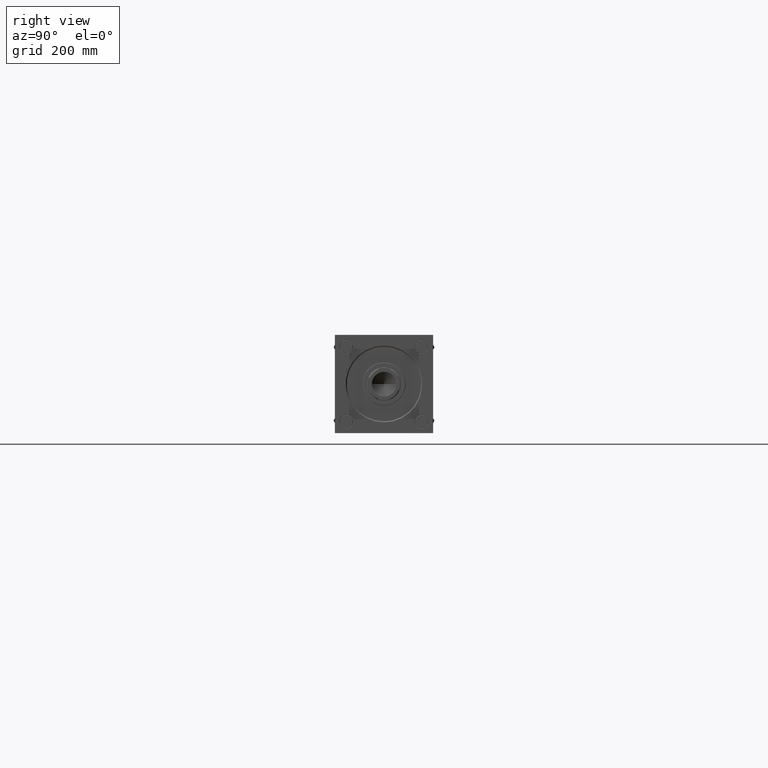
[diagram: clean part render]
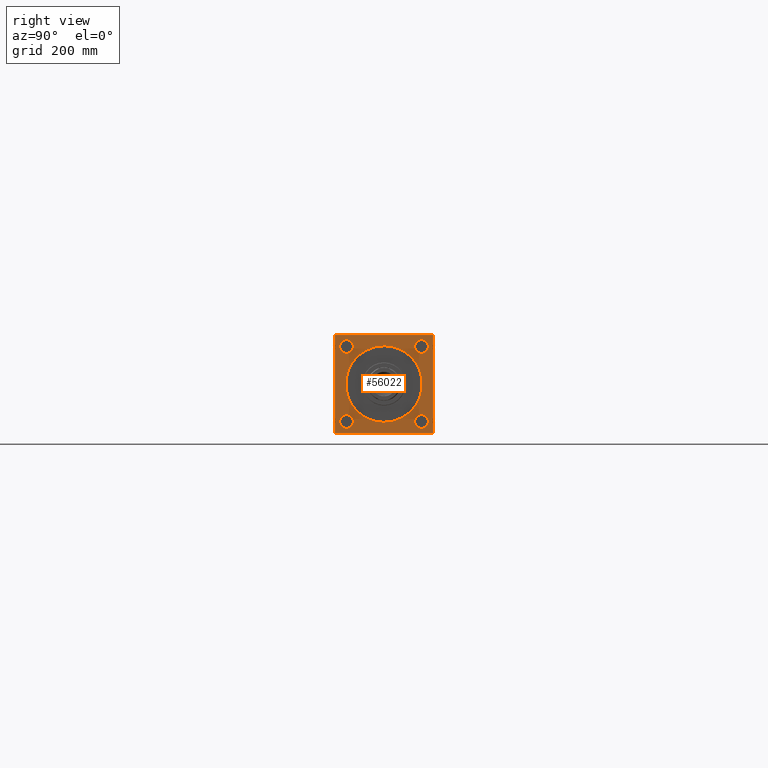
[diagram: same view with one face highlighted and labeled with its STEP entity id]
A machine part, right view. The second image highlights one B-rep face of the part: STEP entity #56022.
In plain terms, the highlighted planar face has unit normal (-1, 0, 0).
Its self-contained STEP definition (entity closure, byte-faithful):
#104 = VECTOR ( 'NONE', #53764, 1000.000000000000114 ) ;
#520 = CARTESIAN_POINT ( 'NONE',  ( 1097.000000000000000, 81.99999999999995737, 82.50000000000000000 ) ) ;
#721 = EDGE_LOOP ( 'NONE', ( #8052, #15349 ) ) ;
#911 = DIRECTION ( 'NONE',  ( 0.000000000000000000, -1.000000000000000000, -1.682156097916904081E-16 ) ) ;
#1323 = ORIENTED_EDGE ( 'NONE', *, *, #1379, .T. ) ;
#1379 = EDGE_CURVE ( 'NONE', #30501, #33975, #23758, .T. ) ;
#1456 = EDGE_LOOP ( 'NONE', ( #50201, #46722 ) ) ;
#2037 = LINE ( 'NONE', #32737, #8415 ) ;
#3056 = DIRECTION ( 'NONE',  ( 0.000000000000000000, -1.682156097916903834E-16, -1.000000000000000000 ) ) ;
#3106 = VERTEX_POINT ( 'NONE', #10119 ) ;
#3421 = DIRECTION ( 'NONE',  ( -1.000000000000000000, -0.000000000000000000, 0.000000000000000000 ) ) ;
#4548 = CARTESIAN_POINT ( 'NONE',  ( 1097.000000000000000, -62.94999999999998153, -62.95000000000001705 ) ) ;
#4609 = DIRECTION ( 'NONE',  ( -1.000000000000000000, -0.000000000000000000, 0.000000000000000000 ) ) ;
#5035 = CARTESIAN_POINT ( 'NONE',  ( 1097.000000000000000, 0.000000000000000000, 0.000000000000000000 ) ) ;
#5742 = DIRECTION ( 'NONE',  ( -1.000000000000000000, -0.000000000000000000, 0.000000000000000000 ) ) ;
#5774 = EDGE_CURVE ( 'NONE', #8942, #21153, #47103, .T. ) ;
#5929 = VECTOR ( 'NONE', #54985, 1000.000000000000000 ) ;
#6895 = CARTESIAN_POINT ( 'NONE',  ( 1097.000000000000000, 62.95000000000000284, 62.95000000000000284 ) ) ;
#7748 = EDGE_CURVE ( 'NONE', #3106, #33690, #33912, .T. ) ;
#7760 = CARTESIAN_POINT ( 'NONE',  ( 1097.000000000000000, 82.50000000000001421, -82.50000000000002842 ) ) ;
#7973 = LINE ( 'NONE', #29407, #30219 ) ;
#8024 = CARTESIAN_POINT ( 'NONE',  ( 1097.000000000000000, -62.94999999999998153, 74.44999999999986073 ) ) ;
#8052 = ORIENTED_EDGE ( 'NONE', *, *, #20101, .T. ) ;
#8368 = DIRECTION ( 'NONE',  ( -1.000000000000000000, -0.000000000000000000, 0.000000000000000000 ) ) ;
#8415 = VECTOR ( 'NONE', #54715, 1000.000000000000114 ) ;
#8722 = ORIENTED_EDGE ( 'NONE', *, *, #7748, .T. ) ;
#8942 = VERTEX_POINT ( 'NONE', #14960 ) ;
#9113 = VERTEX_POINT ( 'NONE', #35781 ) ;
#9433 = CIRCLE ( 'NONE', #38072, 11.49999999999984368 ) ;
#9833 = VECTOR ( 'NONE', #911, 1000.000000000000000 ) ;
#10077 = CARTESIAN_POINT ( 'NONE',  ( 1097.000000000000000, -62.94999999999998153, 62.95000000000001705 ) ) ;
#10119 = CARTESIAN_POINT ( 'NONE',  ( 1097.000000000000000, 62.95000000000000284, 51.45000000000015916 ) ) ;
#10477 = EDGE_LOOP ( 'NONE', ( #39099, #46814 ) ) ;
#10509 = VECTOR ( 'NONE', #48551, 1000.000000000000000 ) ;
#10666 = AXIS2_PLACEMENT_3D ( 'NONE', #10077, #5742, #23406 ) ;
#11249 = ORIENTED_EDGE ( 'NONE', *, *, #26268, .F. ) ;
#11356 = CARTESIAN_POINT ( 'NONE',  ( 1097.000000000000000, -82.49999999999997158, 81.99999999999991473 ) ) ;
#11439 = CIRCLE ( 'NONE', #53027, 11.49999999999950973 ) ;
#12519 = EDGE_CURVE ( 'NONE', #28082, #28468, #25974, .T. ) ;
#12794 = EDGE_CURVE ( 'NONE', #8942, #30670, #54333, .T. ) ;
#13135 = CARTESIAN_POINT ( 'NONE',  ( 1097.000000000000000, -62.94999999999998153, -51.45000000000050733 ) ) ;
#13747 = CARTESIAN_POINT ( 'NONE',  ( 1097.000000000000000, 0.000000000000000000, -64.24999999999970157 ) ) ;
#14960 = CARTESIAN_POINT ( 'NONE',  ( 1097.000000000000000, 82.50000000000001421, 81.99999999999994316 ) ) ;
#15018 = VERTEX_POINT ( 'NONE', #41791 ) ;
#15172 = VERTEX_POINT ( 'NONE', #53615 ) ;
#15349 = ORIENTED_EDGE ( 'NONE', *, *, #12519, .T. ) ;
#16714 = VECTOR ( 'NONE', #25789, 1000.000000000000114 ) ;
#17482 = VERTEX_POINT ( 'NONE', #11356 ) ;
#17882 = FACE_BOUND ( 'NONE', #10477, .T. ) ;
#18222 = DIRECTION ( 'NONE',  ( 0.000000000000000000, 0.000000000000000000, 1.000000000000000000 ) ) ;
#18356 = DIRECTION ( 'NONE',  ( 0.000000000000000000, 0.000000000000000000, 1.000000000000000000 ) ) ;
#18498 = CARTESIAN_POINT ( 'NONE',  ( 1097.000000000000000, 62.95000000000000284, -62.95000000000000284 ) ) ;
#18635 = CARTESIAN_POINT ( 'NONE',  ( 1097.000000000000000, -62.94999999999998153, -62.95000000000001705 ) ) ;
#20101 = EDGE_CURVE ( 'NONE', #28468, #28082, #9433, .T. ) ;
#21133 = ORIENTED_EDGE ( 'NONE', *, *, #53379, .T. ) ;
#21153 = VERTEX_POINT ( 'NONE', #45312 ) ;
#21161 = ORIENTED_EDGE ( 'NONE', *, *, #39531, .T. ) ;
#21333 = VERTEX_POINT ( 'NONE', #27618 ) ;
#21374 = ORIENTED_EDGE ( 'NONE', *, *, #5774, .F. ) ;
#22531 = CARTESIAN_POINT ( 'NONE',  ( 1097.000000000000000, 62.95000000000000284, -74.44999999999984652 ) ) ;
#22911 = AXIS2_PLACEMENT_3D ( 'NONE', #44586, #56482, #34791 ) ;
#22928 = LINE ( 'NONE', #36233, #9833 ) ;
#23070 = CARTESIAN_POINT ( 'NONE',  ( 1097.000000000000000, 0.000000000000000000, 0.000000000000000000 ) ) ;
#23155 = DIRECTION ( 'NONE',  ( 0.000000000000000000, 0.000000000000000000, 1.000000000000000000 ) ) ;
#23357 = FACE_BOUND ( 'NONE', #26500, .T. ) ;
#23406 = DIRECTION ( 'NONE',  ( 0.000000000000000000, 0.000000000000000000, 1.000000000000000000 ) ) ;
#23758 = LINE ( 'NONE', #49793, #5929 ) ;
#25219 = EDGE_CURVE ( 'NONE', #25493, #15018, #32702, .T. ) ;
#25488 = EDGE_CURVE ( 'NONE', #31522, #15172, #11439, .T. ) ;
#25493 = VERTEX_POINT ( 'NONE', #8024 ) ;
#25789 = DIRECTION ( 'NONE',  ( -0.000000000000000000, 0.7071067811865474617, 0.7071067811865474617 ) ) ;
#25974 = CIRCLE ( 'NONE', #55493, 11.49999999999984368 ) ;
#26041 = DIRECTION ( 'NONE',  ( 0.000000000000000000, 0.000000000000000000, 1.000000000000000000 ) ) ;
#26120 = CIRCLE ( 'NONE', #27056, 64.24999999999970157 ) ;
#26268 = EDGE_CURVE ( 'NONE', #9113, #33975, #47397, .T. ) ;
#26281 = ORIENTED_EDGE ( 'NONE', *, *, #38517, .T. ) ;
#26369 = ORIENTED_EDGE ( 'NONE', *, *, #42480, .T. ) ;
#26500 = EDGE_LOOP ( 'NONE', ( #55102, #37012 ) ) ;
#27056 = AXIS2_PLACEMENT_3D ( 'NONE', #51080, #50232, #28269 ) ;
#27124 = FACE_BOUND ( 'NONE', #1456, .T. ) ;
#27332 = AXIS2_PLACEMENT_3D ( 'NONE', #5035, #27601, #18356 ) ;
#27409 = PLANE ( 'NONE',  #30754 ) ;
#27601 = DIRECTION ( 'NONE',  ( -1.000000000000000000, -0.000000000000000000, 0.000000000000000000 ) ) ;
#27618 = CARTESIAN_POINT ( 'NONE',  ( 1097.000000000000000, -81.99999999999990052, 82.49999999999997158 ) ) ;
#28074 = DIRECTION ( 'NONE',  ( -1.000000000000000000, -0.000000000000000000, 0.000000000000000000 ) ) ;
#28082 = VERTEX_POINT ( 'NONE', #39211 ) ;
#28208 = EDGE_CURVE ( 'NONE', #15172, #31522, #56828, .T. ) ;
#28269 = DIRECTION ( 'NONE',  ( 0.000000000000000000, 0.000000000000000000, 1.000000000000000000 ) ) ;
#28468 = VERTEX_POINT ( 'NONE', #22531 ) ;
#29407 = CARTESIAN_POINT ( 'NONE',  ( 1097.000000000000000, -82.49999999999997158, 82.49999999999997158 ) ) ;
#30014 = AXIS2_PLACEMENT_3D ( 'NONE', #18635, #53933, #44674 ) ;
#30171 = CARTESIAN_POINT ( 'NONE',  ( 1097.000000000000000, -82.00000000000015632, -82.50000000000002842 ) ) ;
#30219 = VECTOR ( 'NONE', #3056, 1000.000000000000000 ) ;
#30501 = VERTEX_POINT ( 'NONE', #33007 ) ;
#30670 = VERTEX_POINT ( 'NONE', #31243 ) ;
#30754 = AXIS2_PLACEMENT_3D ( 'NONE', #23070, #36672, #40723 ) ;
#30846 = EDGE_CURVE ( 'NONE', #15018, #25493, #43966, .T. ) ;
#31216 = CIRCLE ( 'NONE', #22911, 11.49999999999984368 ) ;
#31243 = CARTESIAN_POINT ( 'NONE',  ( 1097.000000000000000, 81.99999999999995737, 82.50000000000000000 ) ) ;
#31522 = VERTEX_POINT ( 'NONE', #13135 ) ;
#32702 = CIRCLE ( 'NONE', #39196, 11.49999999999984368 ) ;
#32737 = CARTESIAN_POINT ( 'NONE',  ( 1097.000000000000000, -82.49999999999997158, 81.99999999999991473 ) ) ;
#33007 = CARTESIAN_POINT ( 'NONE',  ( 1097.000000000000000, -82.50000000000000000, -82.00000000000019895 ) ) ;
#33690 = VERTEX_POINT ( 'NONE', #35238 ) ;
#33912 = CIRCLE ( 'NONE', #41271, 11.49999999999984368 ) ;
#33975 = VERTEX_POINT ( 'NONE', #30171 ) ;
#34407 = DIRECTION ( 'NONE',  ( 0.000000000000000000, 0.000000000000000000, 1.000000000000000000 ) ) ;
#34410 = DIRECTION ( 'NONE',  ( 0.000000000000000000, 0.000000000000000000, -1.000000000000000000 ) ) ;
#34791 = DIRECTION ( 'NONE',  ( 0.000000000000000000, 0.000000000000000000, 1.000000000000000000 ) ) ;
#35238 = CARTESIAN_POINT ( 'NONE',  ( 1097.000000000000000, 62.95000000000000284, 74.44999999999984652 ) ) ;
#35781 = CARTESIAN_POINT ( 'NONE',  ( 1097.000000000000000, 82.00000000000018474, -82.50000000000002842 ) ) ;
#35816 = FACE_BOUND ( 'NONE', #721, .T. ) ;
#36025 = EDGE_LOOP ( 'NONE', ( #8722, #26369 ) ) ;
#36233 = CARTESIAN_POINT ( 'NONE',  ( 1097.000000000000000, 82.50000000000001421, 82.50000000000000000 ) ) ;
#36523 = EDGE_CURVE ( 'NONE', #52134, #52928, #52263, .T. ) ;
#36672 = DIRECTION ( 'NONE',  ( -1.000000000000000000, -0.000000000000000000, 0.000000000000000000 ) ) ;
#37012 = ORIENTED_EDGE ( 'NONE', *, *, #25219, .T. ) ;
#37033 = CARTESIAN_POINT ( 'NONE',  ( 1097.000000000000000, 62.95000000000000284, -62.95000000000000284 ) ) ;
#37536 = VECTOR ( 'NONE', #34410, 1000.000000000000000 ) ;
#38072 = AXIS2_PLACEMENT_3D ( 'NONE', #18498, #4609, #18222 ) ;
#38176 = CARTESIAN_POINT ( 'NONE',  ( 1097.000000000000000, 82.50000000000001421, 82.50000000000000000 ) ) ;
#38246 = LINE ( 'NONE', #47757, #16714 ) ;
#38517 = EDGE_CURVE ( 'NONE', #30670, #21333, #22928, .T. ) ;
#39099 = ORIENTED_EDGE ( 'NONE', *, *, #28208, .T. ) ;
#39196 = AXIS2_PLACEMENT_3D ( 'NONE', #48010, #8368, #26041 ) ;
#39211 = CARTESIAN_POINT ( 'NONE',  ( 1097.000000000000000, 62.95000000000000284, -51.45000000000015916 ) ) ;
#39328 = CARTESIAN_POINT ( 'NONE',  ( 1097.000000000000000, 7.868355684521706448E-15, 64.24999999999970157 ) ) ;
#39531 = EDGE_CURVE ( 'NONE', #17482, #30501, #7973, .T. ) ;
#39861 = DIRECTION ( 'NONE',  ( -1.000000000000000000, -0.000000000000000000, 0.000000000000000000 ) ) ;
#40723 = DIRECTION ( 'NONE',  ( 0.000000000000000000, 0.000000000000000000, 1.000000000000000000 ) ) ;
#41271 = AXIS2_PLACEMENT_3D ( 'NONE', #6895, #3421, #34407 ) ;
#41791 = CARTESIAN_POINT ( 'NONE',  ( 1097.000000000000000, -62.94999999999998153, 51.45000000000017337 ) ) ;
#42480 = EDGE_CURVE ( 'NONE', #33690, #3106, #31216, .T. ) ;
#43966 = CIRCLE ( 'NONE', #10666, 11.49999999999984368 ) ;
#44586 = CARTESIAN_POINT ( 'NONE',  ( 1097.000000000000000, 62.95000000000000284, 62.95000000000000284 ) ) ;
#44674 = DIRECTION ( 'NONE',  ( 0.000000000000000000, 0.000000000000000000, 1.000000000000000000 ) ) ;
#45312 = CARTESIAN_POINT ( 'NONE',  ( 1097.000000000000000, 82.50000000000001421, -82.00000000000019895 ) ) ;
#45974 = ORIENTED_EDGE ( 'NONE', *, *, #12794, .T. ) ;
#46722 = ORIENTED_EDGE ( 'NONE', *, *, #36523, .T. ) ;
#46814 = ORIENTED_EDGE ( 'NONE', *, *, #25488, .T. ) ;
#47103 = LINE ( 'NONE', #38176, #37536 ) ;
#47397 = LINE ( 'NONE', #7760, #10509 ) ;
#47658 = DIRECTION ( 'NONE',  ( 0.000000000000000000, 0.000000000000000000, 1.000000000000000000 ) ) ;
#47757 = CARTESIAN_POINT ( 'NONE',  ( 1097.000000000000000, 82.50000000000001421, -82.00000000000019895 ) ) ;
#48010 = CARTESIAN_POINT ( 'NONE',  ( 1097.000000000000000, -62.94999999999998153, 62.95000000000001705 ) ) ;
#48532 = FACE_BOUND ( 'NONE', #36025, .T. ) ;
#48551 = DIRECTION ( 'NONE',  ( 0.000000000000000000, -1.000000000000000000, 0.000000000000000000 ) ) ;
#48776 = EDGE_CURVE ( 'NONE', #21333, #17482, #2037, .T. ) ;
#49793 = CARTESIAN_POINT ( 'NONE',  ( 1097.000000000000000, -82.00000000000015632, -82.50000000000002842 ) ) ;
#50201 = ORIENTED_EDGE ( 'NONE', *, *, #56966, .T. ) ;
#50232 = DIRECTION ( 'NONE',  ( -1.000000000000000000, -0.000000000000000000, 0.000000000000000000 ) ) ;
#51080 = CARTESIAN_POINT ( 'NONE',  ( 1097.000000000000000, 0.000000000000000000, 0.000000000000000000 ) ) ;
#52030 = EDGE_LOOP ( 'NONE', ( #21161, #1323, #11249, #21133, #21374, #45974, #26281, #53149 ) ) ;
#52134 = VERTEX_POINT ( 'NONE', #39328 ) ;
#52263 = CIRCLE ( 'NONE', #27332, 64.24999999999970157 ) ;
#52928 = VERTEX_POINT ( 'NONE', #13747 ) ;
#53027 = AXIS2_PLACEMENT_3D ( 'NONE', #4548, #39861, #47658 ) ;
#53149 = ORIENTED_EDGE ( 'NONE', *, *, #48776, .T. ) ;
#53379 = EDGE_CURVE ( 'NONE', #9113, #21153, #38246, .T. ) ;
#53460 = FACE_OUTER_BOUND ( 'NONE', #52030, .T. ) ;
#53615 = CARTESIAN_POINT ( 'NONE',  ( 1097.000000000000000, -62.94999999999998153, -74.44999999999953388 ) ) ;
#53764 = DIRECTION ( 'NONE',  ( 0.000000000000000000, -0.7071067811865474617, 0.7071067811865474617 ) ) ;
#53933 = DIRECTION ( 'NONE',  ( -1.000000000000000000, -0.000000000000000000, 0.000000000000000000 ) ) ;
#54333 = LINE ( 'NONE', #520, #104 ) ;
#54715 = DIRECTION ( 'NONE',  ( -0.000000000000000000, -0.7071067811865573427, -0.7071067811865376918 ) ) ;
#54985 = DIRECTION ( 'NONE',  ( 0.000000000000000000, 0.7071067811865573427, -0.7071067811865378028 ) ) ;
#55102 = ORIENTED_EDGE ( 'NONE', *, *, #30846, .T. ) ;
#55493 = AXIS2_PLACEMENT_3D ( 'NONE', #37033, #28074, #23155 ) ;
#56022 = ADVANCED_FACE ( 'NONE', ( #17882, #35816, #48532, #23357, #27124, #53460 ), #27409, .F. ) ;
#56482 = DIRECTION ( 'NONE',  ( -1.000000000000000000, -0.000000000000000000, 0.000000000000000000 ) ) ;
#56828 = CIRCLE ( 'NONE', #30014, 11.49999999999950973 ) ;
#56966 = EDGE_CURVE ( 'NONE', #52928, #52134, #26120, .T. ) ;